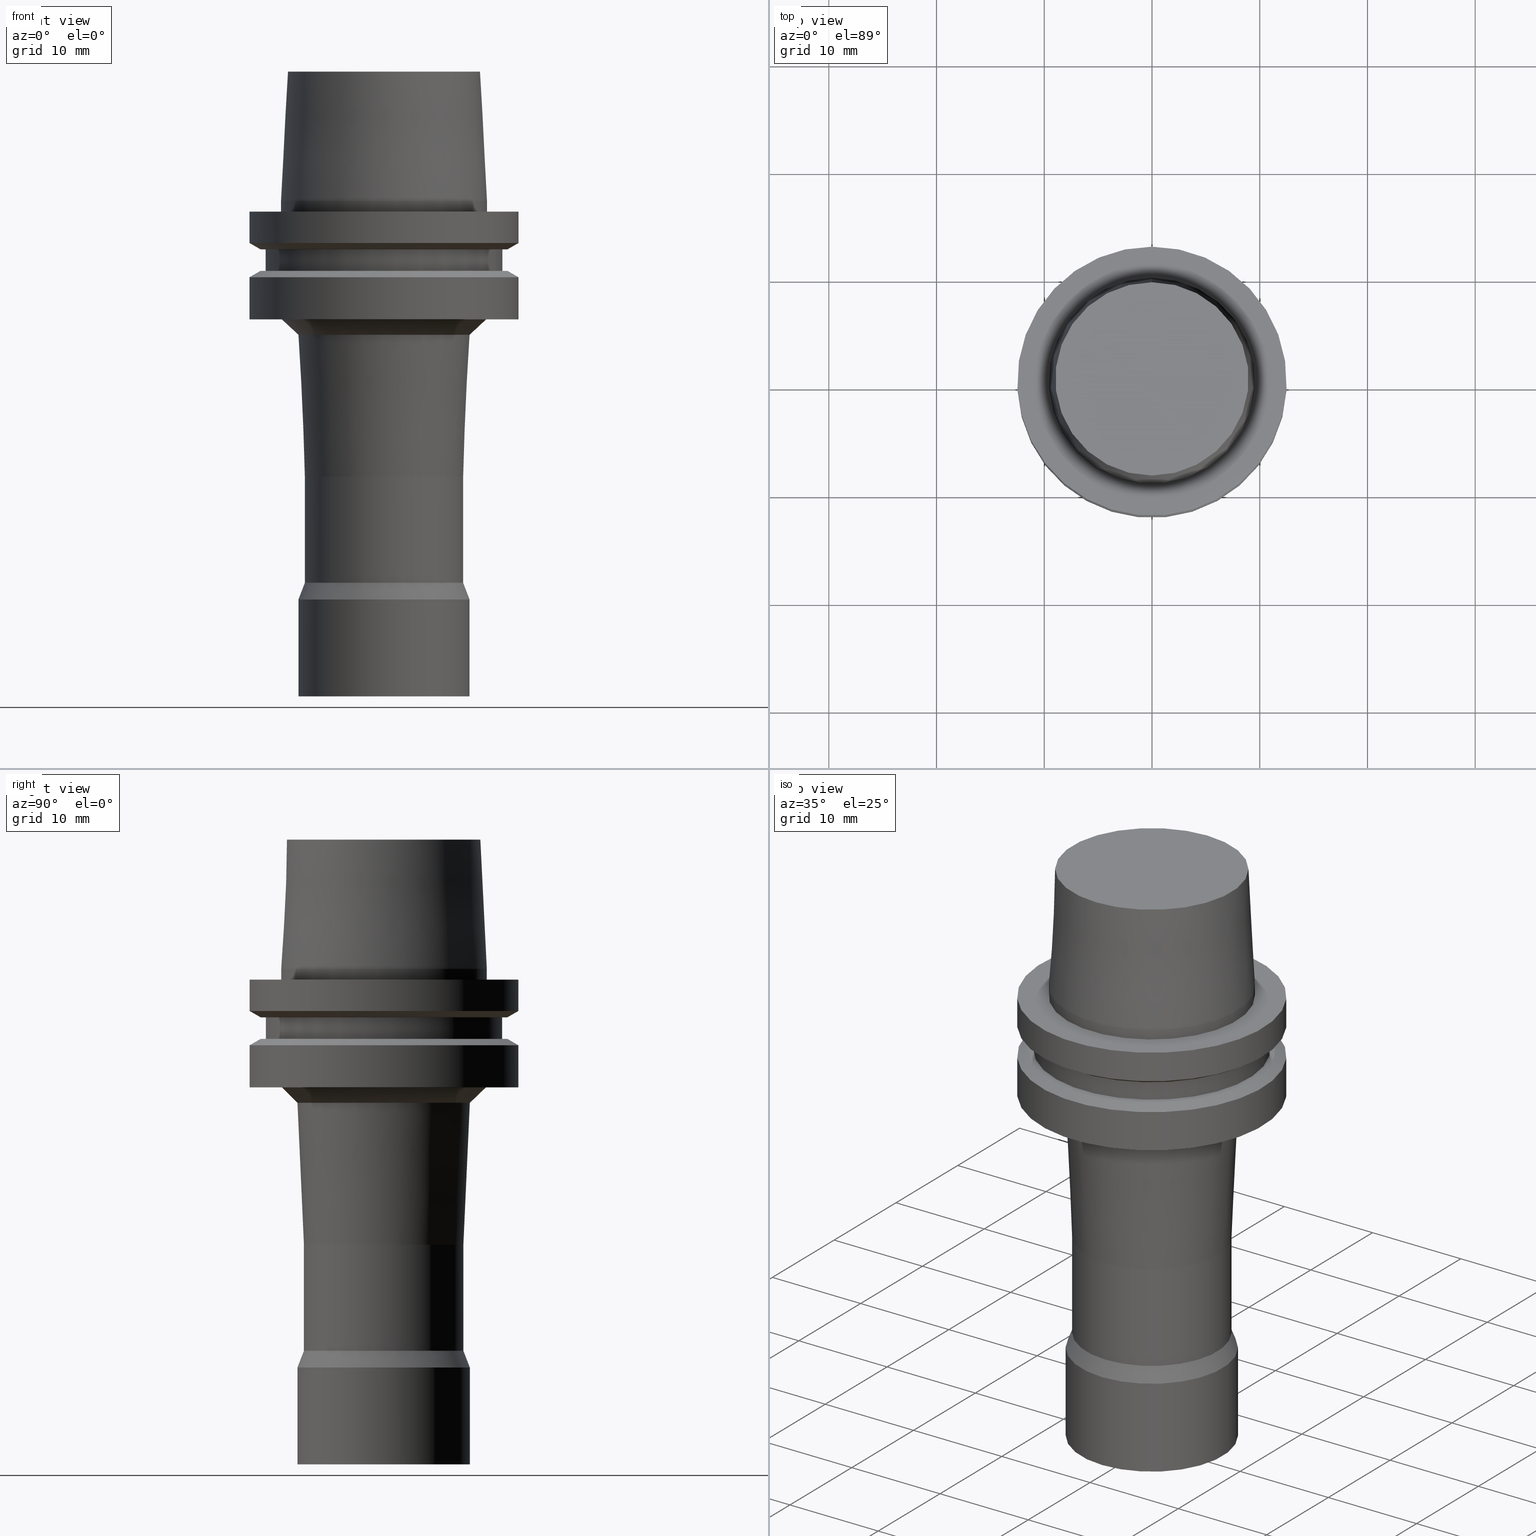
[diagram: canonical four-view strip — front | top / right | iso, engineering-drawing reading convention]
A machine part, canonical four-view strip (front | top / right | iso — engineering-drawing reading convention). The complete STEP part file that produces these views, byte-faithful:
ISO-10303-21;
HEADER;
FILE_DESCRIPTION((''),'1');
FILE_NAME('//Big_tech03/bigt/Translate/21_\X2\8F2A90ED7DDA\X0\-DXF/71_\X2\5207524A5DE55177\X0\/01_\X2\30A830F330C930DF30EB52A05DE5\X0\/01_\X2\30D530EB30AB30C330C830DF30EB\X0\ FCM/HSK/E 25/HSK-E25-FCM16092-45.stp','2012-05-30T07:07:57',(''),(''),'Spatial Interop R18','Kubotek KeyCreator V8.5.1 (14335)',' ');
FILE_SCHEMA(('CONFIG_CONTROL_DESIGN'));
ENDSEC;
DATA;
#1=DESIGN_CONTEXT('',#27,'design');
#2=APPLICATION_PROTOCOL_DEFINITION('INTERNATIONAL STANDARD','config_control_design',1994,#27);
#3=PRODUCT_CATEGORY_RELATIONSHIP('NONE','NONE',#28,#29);
#4=DATE_AND_TIME(#30,#31);
#5=DATE_TIME_ROLE('creation_date');
#6=DATE_TIME_ROLE('classification_date');
#7=PERSON_AND_ORGANIZATION_ROLE('creator');
#8=PERSON_AND_ORGANIZATION_ROLE('design_supplier');
#9=PERSON_AND_ORGANIZATION_ROLE('classification_officer');
#10=PERSON_AND_ORGANIZATION_ROLE('design_owner');
#11=APPROVAL_PERSON_ORGANIZATION(#32,#33,#34);
#12=APPROVAL_DATE_TIME(#4,#33);
#13=CC_DESIGN_APPROVAL(#33,(#35,#36,#37));
#14=CC_DESIGN_DATE_AND_TIME_ASSIGNMENT(#4,#5,(#37));
#15=CC_DESIGN_DATE_AND_TIME_ASSIGNMENT(#4,#6,(#35));
#16=CC_DESIGN_PERSON_AND_ORGANIZATION_ASSIGNMENT(#32,#10,(#38));
#17=CC_DESIGN_PERSON_AND_ORGANIZATION_ASSIGNMENT(#32,#7,(#37));
#18=CC_DESIGN_PERSON_AND_ORGANIZATION_ASSIGNMENT(#32,#7,(#36));
#19=CC_DESIGN_PERSON_AND_ORGANIZATION_ASSIGNMENT(#32,#8,(#36));
#20=CC_DESIGN_SECURITY_CLASSIFICATION(#35,(#36));
#21=CC_DESIGN_PERSON_AND_ORGANIZATION_ASSIGNMENT(#32,#9,(#35));
#22=SHAPE_DEFINITION_REPRESENTATION(#39,#40);
#23= (GEOMETRIC_REPRESENTATION_CONTEXT(3)GLOBAL_UNCERTAINTY_ASSIGNED_CONTEXT((#43))GLOBAL_UNIT_ASSIGNED_CONTEXT((#45,#46,#47))REPRESENTATION_CONTEXT('NONE','WORKSPACE'));
#27=APPLICATION_CONTEXT('CONFIGURATION CONTROLLED 3D DESIGNS OF MECHANICAL PARTS AND ASSEMBLIES');
#28=PRODUCT_CATEGORY('part','NONE');
#29=PRODUCT_RELATED_PRODUCT_CATEGORY('detail',' ',(#38));
#30=CALENDAR_DATE(2012,30,4);
#31=LOCAL_TIME(16,7,57.0,#49);
#32=PERSON_AND_ORGANIZATION(#50,#51);
#33=APPROVAL(#52,'SOLID MODEL');
#34=APPROVAL_ROLE('APPROVED');
#35=SECURITY_CLASSIFICATION('','',#53);
#36=PRODUCT_DEFINITION_FORMATION_WITH_SPECIFIED_SOURCE(' ','NONE',#38,.NOT_KNOWN.);
#37=PRODUCT_DEFINITION('NONE','NONE',#36,#1);
#38=PRODUCT('1','1','PART-1-DESC',(#54));
#39=PRODUCT_DEFINITION_SHAPE('NONE','NONE',#37);
#40=ADVANCED_BREP_SHAPE_REPRESENTATION('1',(#55,#56),#23);
#43=UNCERTAINTY_MEASURE_WITH_UNIT(LENGTH_MEASURE(1.0E-006),#45,'','');
#45= (CONVERSION_BASED_UNIT('MILLIMETRE',#59)LENGTH_UNIT()NAMED_UNIT(#62));
#46= (NAMED_UNIT(#64)PLANE_ANGLE_UNIT()SI_UNIT($,.RADIAN.));
#47= (NAMED_UNIT(#64)SOLID_ANGLE_UNIT()SI_UNIT($,.STERADIAN.));
#49=COORDINATED_UNIVERSAL_TIME_OFFSET(9,0,.AHEAD.);
#50=PERSON('','UNSPECIFIED',$,$,$,$);
#51=ORGANIZATION('UNSPECIFIED','UNSPECIFIED','UNSPECIFIED');
#52=APPROVAL_STATUS('approved');
#53=SECURITY_CLASSIFICATION_LEVEL('unclassified');
#54=MECHANICAL_CONTEXT('',#27,'mechanical');
#55=MANIFOLD_SOLID_BREP('1',#70);
#56=AXIS2_PLACEMENT_3D('',#71,#72,#73);
#59=LENGTH_MEASURE_WITH_UNIT(LENGTH_MEASURE(1.0),#74);
#62=DIMENSIONAL_EXPONENTS(1.0,0.0,0.0,0.0,0.0,0.0,0.0);
#64=DIMENSIONAL_EXPONENTS(0.0,0.0,0.0,0.0,0.0,0.0,0.0);
#70=CLOSED_SHELL('',(#75,#76,#77,#78,#79,#80,#81,#82,#83,#84,#85,#86,#87,#88,#89,#90,#91,#92));
#71=CARTESIAN_POINT('',(0.0,0.0,0.0));
#72=DIRECTION('',(0.0,0.0,1.0));
#73=DIRECTION('',(1.0,0.0,0.0));
#74= (NAMED_UNIT(#62)LENGTH_UNIT()SI_UNIT(.MILLI.,.METRE.));
#75=ADVANCED_FACE('',(#94,#95),#96,.T.);
#76=ADVANCED_FACE('',(#97,#98),#99,.T.);
#77=ADVANCED_FACE('',(#100,#101),#102,.T.);
#78=ADVANCED_FACE('',(#103,#104),#105,.T.);
#79=ADVANCED_FACE('',(#106,#107),#108,.T.);
#80=ADVANCED_FACE('',(#109,#110),#111,.T.);
#81=ADVANCED_FACE('',(#112,#113),#114,.T.);
#82=ADVANCED_FACE('',(#115,#116),#117,.T.);
#83=ADVANCED_FACE('',(#118,#119),#120,.T.);
#84=ADVANCED_FACE('',(#121,#122),#123,.T.);
#85=ADVANCED_FACE('',(#124,#125),#126,.T.);
#86=ADVANCED_FACE('',(#127,#128),#129,.T.);
#87=ADVANCED_FACE('',(#130,#131),#132,.T.);
#88=ADVANCED_FACE('',(#133,#134),#135,.T.);
#89=ADVANCED_FACE('',(#136,#137),#138,.T.);
#90=ADVANCED_FACE('',(#139),#140,.T.);
#91=ADVANCED_FACE('',(#141),#142,.T.);
#92=ADVANCED_FACE('',(#143,#144),#145,.T.);
#94=FACE_BOUND('',#146,.T.);
#95=FACE_BOUND('',#147,.T.);
#96=CYLINDRICAL_SURFACE('',#148,9.575);
#97=FACE_OUTER_BOUND('',#149,.T.);
#98=FACE_BOUND('',#150,.T.);
#99=PLANE('',#151);
#100=FACE_BOUND('',#152,.T.);
#101=FACE_BOUND('',#153,.T.);
#102=CYLINDRICAL_SURFACE('',#154,12.5);
#103=FACE_BOUND('',#155,.T.);
#104=FACE_BOUND('',#156,.T.);
#105=CONICAL_SURFACE('',#157,11.991025405,1.04719755036247);
#106=FACE_BOUND('',#158,.T.);
#107=FACE_OUTER_BOUND('',#159,.T.);
#108=PLANE('',#160);
#109=FACE_BOUND('',#161,.T.);
#110=FACE_BOUND('',#162,.T.);
#111=CYLINDRICAL_SURFACE('',#163,11.0);
#112=FACE_OUTER_BOUND('',#164,.T.);
#113=FACE_BOUND('',#165,.T.);
#114=PLANE('',#166);
#115=FACE_BOUND('',#167,.T.);
#116=FACE_BOUND('',#168,.T.);
#117=CONICAL_SURFACE('',#169,11.991025405,1.04719755036247);
#118=FACE_BOUND('',#170,.T.);
#119=FACE_BOUND('',#171,.T.);
#120=CYLINDRICAL_SURFACE('',#172,12.5);
#121=FACE_BOUND('',#173,.T.);
#122=FACE_OUTER_BOUND('',#174,.T.);
#123=PLANE('',#175);
#124=FACE_BOUND('',#176,.T.);
#125=FACE_BOUND('',#177,.T.);
#126=CONICAL_SURFACE('',#178,8.74853795516976,0.808146448152672);
#127=FACE_BOUND('',#179,.T.);
#128=FACE_BOUND('',#180,.T.);
#129=CONICAL_SURFACE('',#181,7.69965702516976,0.0454965695104514);
#130=FACE_BOUND('',#182,.T.);
#131=FACE_BOUND('',#183,.T.);
#132=CYLINDRICAL_SURFACE('',#184,7.4);
#133=FACE_BOUND('',#185,.T.);
#134=FACE_BOUND('',#186,.T.);
#135=CONICAL_SURFACE('',#187,7.7,0.369443265532845);
#136=FACE_BOUND('',#188,.T.);
#137=FACE_BOUND('',#189,.T.);
#138=CYLINDRICAL_SURFACE('',#190,8.0);
#139=FACE_OUTER_BOUND('',#191,.T.);
#140=PLANE('',#192);
#141=FACE_OUTER_BOUND('',#193,.T.);
#142=PLANE('',#194);
#143=FACE_BOUND('',#195,.T.);
#144=FACE_BOUND('',#196,.T.);
#145=CONICAL_SURFACE('',#197,9.275,0.0499583957219411);
#146=EDGE_LOOP('',(#198));
#147=EDGE_LOOP('',(#199));
#148=AXIS2_PLACEMENT_3D('',#200,#201,#202);
#149=EDGE_LOOP('',(#203));
#150=EDGE_LOOP('',(#204));
#151=AXIS2_PLACEMENT_3D('',#205,#206,#207);
#152=EDGE_LOOP('',(#208));
#153=EDGE_LOOP('',(#209));
#154=AXIS2_PLACEMENT_3D('',#210,#211,#212);
#155=EDGE_LOOP('',(#213));
#156=EDGE_LOOP('',(#214));
#157=AXIS2_PLACEMENT_3D('',#215,#216,#217);
#158=EDGE_LOOP('',(#218));
#159=EDGE_LOOP('',(#219));
#160=AXIS2_PLACEMENT_3D('',#220,#221,#222);
#161=EDGE_LOOP('',(#223));
#162=EDGE_LOOP('',(#224));
#163=AXIS2_PLACEMENT_3D('',#225,#226,#227);
#164=EDGE_LOOP('',(#228));
#165=EDGE_LOOP('',(#229));
#166=AXIS2_PLACEMENT_3D('',#230,#231,#232);
#167=EDGE_LOOP('',(#233));
#168=EDGE_LOOP('',(#234));
#169=AXIS2_PLACEMENT_3D('',#235,#236,#237);
#170=EDGE_LOOP('',(#238));
#171=EDGE_LOOP('',(#239));
#172=AXIS2_PLACEMENT_3D('',#240,#241,#242);
#173=EDGE_LOOP('',(#243));
#174=EDGE_LOOP('',(#244));
#175=AXIS2_PLACEMENT_3D('',#245,#246,#247);
#176=EDGE_LOOP('',(#248));
#177=EDGE_LOOP('',(#249));
#178=AXIS2_PLACEMENT_3D('',#250,#251,#252);
#179=EDGE_LOOP('',(#253));
#180=EDGE_LOOP('',(#254));
#181=AXIS2_PLACEMENT_3D('',#255,#256,#257);
#182=EDGE_LOOP('',(#258));
#183=EDGE_LOOP('',(#259));
#184=AXIS2_PLACEMENT_3D('',#260,#261,#262);
#185=EDGE_LOOP('',(#263));
#186=EDGE_LOOP('',(#264));
#187=AXIS2_PLACEMENT_3D('',#265,#266,#267);
#188=EDGE_LOOP('',(#268));
#189=EDGE_LOOP('',(#269));
#190=AXIS2_PLACEMENT_3D('',#270,#271,#272);
#191=EDGE_LOOP('',(#273));
#192=AXIS2_PLACEMENT_3D('',#274,#275,#276);
#193=EDGE_LOOP('',(#277));
#194=AXIS2_PLACEMENT_3D('',#278,#279,#280);
#195=EDGE_LOOP('',(#281));
#196=EDGE_LOOP('',(#282));
#197=AXIS2_PLACEMENT_3D('',#283,#284,#285);
#198=ORIENTED_EDGE('',*,*,#286,.F.);
#199=ORIENTED_EDGE('',*,*,#287,.T.);
#200=CARTESIAN_POINT('',(-3.06161699786838E-017,-6.12323399573676E-017,0.5));
#201=DIRECTION('',(-6.12323399573677E-017,-1.22464679914735E-016,1.0));
#202=DIRECTION('',(-1.23259516440783E-032,1.0,1.22464679914735E-016));
#203=ORIENTED_EDGE('',*,*,#288,.F.);
#204=ORIENTED_EDGE('',*,*,#286,.T.);
#205=CARTESIAN_POINT('',(-1.36047691271514E-031,11.0375,1.35170390455889E-015));
#206=DIRECTION('',(-6.12323399573677E-017,-1.22464679914735E-016,1.0));
#207=DIRECTION('',(1.23259516440783E-032,-1.0,-1.22464679914735E-016));
#208=ORIENTED_EDGE('',*,*,#289,.F.);
#209=ORIENTED_EDGE('',*,*,#288,.T.);
#210=CARTESIAN_POINT('',(8.91630664708304E-017,1.78326132941661E-016,-1.45614338));
#211=DIRECTION('',(-6.12323399573677E-017,-1.22464679914735E-016,1.0));
#212=DIRECTION('',(-1.23259516440783E-032,1.0,1.22464679914735E-016));
#213=ORIENTED_EDGE('',*,*,#290,.F.);
#214=ORIENTED_EDGE('',*,*,#289,.T.);
#215=CARTESIAN_POINT('',(1.96319661396224E-016,3.92639322792447E-016,-3.20614338));
#216=DIRECTION('',(-6.12323399573677E-017,-1.22464679914735E-016,1.0));
#217=DIRECTION('',(-1.23259516440783E-032,1.0,1.22464679914735E-016));
#218=ORIENTED_EDGE('',*,*,#291,.F.);
#219=ORIENTED_EDGE('',*,*,#290,.T.);
#220=CARTESIAN_POINT('',(2.14313189850787E-016,11.241025405,-3.5));
#221=DIRECTION('',(6.12323399573677E-017,1.22464679914735E-016,-1.0));
#222=DIRECTION('',(-1.23259516440783E-032,1.0,1.22464679914735E-016));
#223=ORIENTED_EDGE('',*,*,#292,.F.);
#224=ORIENTED_EDGE('',*,*,#291,.T.);
#225=CARTESIAN_POINT('',(2.75545529808154E-016,5.51091059616309E-016,-4.5));
#226=DIRECTION('',(-6.12323399573677E-017,-1.22464679914735E-016,1.0));
#227=DIRECTION('',(-1.23259516440783E-032,1.0,1.22464679914735E-016));
#228=ORIENTED_EDGE('',*,*,#293,.F.);
#229=ORIENTED_EDGE('',*,*,#292,.T.);
#230=CARTESIAN_POINT('',(3.36777869765522E-016,11.241025405,-5.5));
#231=DIRECTION('',(-6.12323399573677E-017,-1.22464679914735E-016,1.0));
#232=DIRECTION('',(1.23259516440783E-032,-1.0,-1.22464679914735E-016));
#233=ORIENTED_EDGE('',*,*,#294,.F.);
#234=ORIENTED_EDGE('',*,*,#293,.T.);
#235=CARTESIAN_POINT('',(3.54771398220085E-016,7.0954279644017E-016,-5.79385662));
#236=DIRECTION('',(6.12323399573677E-017,1.22464679914735E-016,-1.0));
#237=DIRECTION('',(-1.23259516440783E-032,1.0,1.22464679914735E-016));
#238=ORIENTED_EDGE('',*,*,#295,.F.);
#239=ORIENTED_EDGE('',*,*,#294,.T.);
#240=CARTESIAN_POINT('',(4.92544163124162E-016,9.85088326248324E-016,-8.04385662));
#241=DIRECTION('',(-6.12323399573677E-017,-1.22464679914735E-016,1.0));
#242=DIRECTION('',(-1.23259516440783E-032,1.0,1.22464679914735E-016));
#243=ORIENTED_EDGE('',*,*,#296,.F.);
#244=ORIENTED_EDGE('',*,*,#295,.T.);
#245=CARTESIAN_POINT('',(6.12323399573677E-016,10.99888093,-10.0));
#246=DIRECTION('',(6.12323399573677E-017,1.22464679914735E-016,-1.0));
#247=DIRECTION('',(-1.23259516440783E-032,1.0,1.22464679914735E-016));
#248=ORIENTED_EDGE('',*,*,#297,.F.);
#249=ORIENTED_EDGE('',*,*,#296,.T.);
#250=CARTESIAN_POINT('',(6.5615897909026E-016,1.31231795818052E-015,-10.7158893412714));
#251=DIRECTION('',(-6.12323399573676E-017,-1.22464679914735E-016,1.0));
#252=DIRECTION('',(-1.23259516440783E-032,1.0,1.22464679914735E-016));
#253=ORIENTED_EDGE('',*,*,#298,.F.);
#254=ORIENTED_EDGE('',*,*,#297,.T.);
#255=CARTESIAN_POINT('',(1.10301480963518E-015,2.20602961927036E-015,-18.0135988662714));
#256=DIRECTION('',(-6.12323399573677E-017,-1.22464679914735E-016,1.0));
#257=DIRECTION('',(-1.23259516440783E-032,1.0,1.22464679914735E-016));
#258=ORIENTED_EDGE('',*,*,#299,.F.);
#259=ORIENTED_EDGE('',*,*,#298,.T.);
#260=CARTESIAN_POINT('',(1.80776003226133E-015,3.61552006452266E-015,-29.52296178));
#261=DIRECTION('',(-6.12323399573677E-017,-1.22464679914735E-016,1.0));
#262=DIRECTION('',(-1.23259516440783E-032,1.0,1.22464679914735E-016));
#263=ORIENTED_EDGE('',*,*,#300,.F.);
#264=ORIENTED_EDGE('',*,*,#299,.T.);
#265=CARTESIAN_POINT('',(2.15692462116219E-015,4.31384924232438E-015,-35.225252255));
#266=DIRECTION('',(6.12323399573677E-017,1.22464679914735E-016,-1.0));
#267=DIRECTION('',(-1.23259516440783E-032,1.0,1.22464679914735E-016));
#268=ORIENTED_EDGE('',*,*,#301,.F.);
#269=ORIENTED_EDGE('',*,*,#300,.T.);
#270=CARTESIAN_POINT('',(2.47990976827339E-015,4.95981953654678E-015,-40.5));
#271=DIRECTION('',(-6.12323399573677E-017,-1.22464679914735E-016,1.0));
#272=DIRECTION('',(-1.23259516440783E-032,1.0,1.22464679914735E-016));
#273=ORIENTED_EDGE('',*,*,#301,.T.);
#274=CARTESIAN_POINT('',(2.75545529808154E-015,4.00000000000001,-45.0));
#275=DIRECTION('',(6.12323399573677E-017,1.22464679914735E-016,-1.0));
#276=DIRECTION('',(-1.23259516440783E-032,1.0,1.22464679914735E-016));
#277=ORIENTED_EDGE('',*,*,#302,.F.);
#278=CARTESIAN_POINT('',(-7.9602041944578E-016,4.4875,13.0));
#279=DIRECTION('',(-6.12323399573677E-017,-1.22464679914735E-016,1.0));
#280=DIRECTION('',(1.23259516440783E-032,-1.0,-1.22464679914735E-016));
#281=ORIENTED_EDGE('',*,*,#287,.F.);
#282=ORIENTED_EDGE('',*,*,#302,.T.);
#283=CARTESIAN_POINT('',(-4.28626379701574E-016,-8.57252759403147E-016,7.0));
#284=DIRECTION('',(6.12323399573676E-017,1.22464679914735E-016,-1.0));
#285=DIRECTION('',(-1.23259516440783E-032,1.0,1.22464679914735E-016));
#286=EDGE_CURVE('',#303,#303,#304,.T.);
#287=EDGE_CURVE('',#305,#305,#306,.T.);
#288=EDGE_CURVE('',#307,#307,#308,.T.);
#289=EDGE_CURVE('',#309,#309,#310,.T.);
#290=EDGE_CURVE('',#311,#311,#312,.T.);
#291=EDGE_CURVE('',#313,#313,#314,.T.);
#292=EDGE_CURVE('',#315,#315,#316,.T.);
#293=EDGE_CURVE('',#317,#317,#318,.T.);
#294=EDGE_CURVE('',#319,#319,#320,.T.);
#295=EDGE_CURVE('',#321,#321,#322,.T.);
#296=EDGE_CURVE('',#323,#323,#324,.T.);
#297=EDGE_CURVE('',#325,#325,#326,.T.);
#298=EDGE_CURVE('',#327,#327,#328,.T.);
#299=EDGE_CURVE('',#329,#329,#330,.T.);
#300=EDGE_CURVE('',#331,#331,#332,.T.);
#301=EDGE_CURVE('',#333,#333,#334,.T.);
#302=EDGE_CURVE('',#335,#335,#336,.T.);
#303=VERTEX_POINT('',#337);
#304=CIRCLE('',#338,9.575);
#305=VERTEX_POINT('',#339);
#306=CIRCLE('',#340,9.575);
#307=VERTEX_POINT('',#341);
#308=CIRCLE('',#342,12.5);
#309=VERTEX_POINT('',#343);
#310=CIRCLE('',#344,12.5);
#311=VERTEX_POINT('',#345);
#312=CIRCLE('',#346,11.48205081);
#313=VERTEX_POINT('',#347);
#314=CIRCLE('',#348,11.0);
#315=VERTEX_POINT('',#349);
#316=CIRCLE('',#350,11.0);
#317=VERTEX_POINT('',#351);
#318=CIRCLE('',#352,11.48205081);
#319=VERTEX_POINT('',#353);
#320=CIRCLE('',#354,12.5);
#321=VERTEX_POINT('',#355);
#322=CIRCLE('',#356,12.5);
#323=VERTEX_POINT('',#357);
#324=CIRCLE('',#358,9.49776186);
#325=VERTEX_POINT('',#359);
#326=CIRCLE('',#360,7.99931405033951);
#327=VERTEX_POINT('',#361);
#328=CIRCLE('',#362,7.4);
#329=VERTEX_POINT('',#363);
#330=CIRCLE('',#364,7.4);
#331=VERTEX_POINT('',#365);
#332=CIRCLE('',#366,8.0);
#333=VERTEX_POINT('',#367);
#334=CIRCLE('',#368,8.0);
#335=VERTEX_POINT('',#369);
#336=CIRCLE('',#370,8.975);
#337=CARTESIAN_POINT('',(-1.1802098699205E-031,9.575,1.17259931018359E-015));
#338=AXIS2_PLACEMENT_3D('',#371,#372,#373);
#339=CARTESIAN_POINT('',(-6.12323399573678E-017,9.575,1.0));
#340=AXIS2_PLACEMENT_3D('',#374,#375,#376);
#341=CARTESIAN_POINT('',(-1.54074395550979E-031,12.5,1.53080849893419E-015));
#342=AXIS2_PLACEMENT_3D('',#377,#378,#379);
#343=CARTESIAN_POINT('',(1.78326132941661E-016,12.5,-2.91228676));
#344=AXIS2_PLACEMENT_3D('',#380,#381,#382);
#345=CARTESIAN_POINT('',(2.14313189850787E-016,11.48205081,-3.5));
#346=AXIS2_PLACEMENT_3D('',#383,#384,#385);
#347=CARTESIAN_POINT('',(2.14313189850787E-016,11.0,-3.5));
#348=AXIS2_PLACEMENT_3D('',#386,#387,#388);
#349=CARTESIAN_POINT('',(3.36777869765522E-016,11.0,-5.5));
#350=AXIS2_PLACEMENT_3D('',#389,#390,#391);
#351=CARTESIAN_POINT('',(3.36777869765522E-016,11.48205081,-5.5));
#352=AXIS2_PLACEMENT_3D('',#392,#393,#394);
#353=CARTESIAN_POINT('',(3.72764926674648E-016,12.5,-6.08771324));
#354=AXIS2_PLACEMENT_3D('',#395,#396,#397);
#355=CARTESIAN_POINT('',(6.12323399573676E-016,12.5,-10.0));
#356=AXIS2_PLACEMENT_3D('',#398,#399,#400);
#357=CARTESIAN_POINT('',(6.12323399573677E-016,9.49776186,-10.0));
#358=AXIS2_PLACEMENT_3D('',#401,#402,#403);
#359=CARTESIAN_POINT('',(6.99994558606844E-016,7.99931405033952,-11.4317786825427));
#360=AXIS2_PLACEMENT_3D('',#404,#405,#406);
#361=CARTESIAN_POINT('',(1.50603506066352E-015,7.4,-24.59541905));
#362=AXIS2_PLACEMENT_3D('',#407,#408,#409);
#363=CARTESIAN_POINT('',(2.10948500385915E-015,7.4,-34.45050451));
#364=AXIS2_PLACEMENT_3D('',#410,#411,#412);
#365=CARTESIAN_POINT('',(2.20436423846524E-015,8.0,-36.0));
#366=AXIS2_PLACEMENT_3D('',#413,#414,#415);
#367=CARTESIAN_POINT('',(2.75545529808154E-015,8.00000000000001,-45.0));
#368=AXIS2_PLACEMENT_3D('',#416,#417,#418);
#369=CARTESIAN_POINT('',(-7.9602041944578E-016,8.975,13.0));
#370=AXIS2_PLACEMENT_3D('',#419,#420,#421);
#371=CARTESIAN_POINT('',(0.0,0.0,0.0));
#372=DIRECTION('',(6.12323399573677E-017,1.22464679914735E-016,-1.0));
#373=DIRECTION('',(-1.23259516440783E-032,1.0,1.22464679914735E-016));
#374=CARTESIAN_POINT('',(-6.12323399573677E-017,-1.22464679914735E-016,1.0));
#375=DIRECTION('',(6.12323399573677E-017,1.22464679914735E-016,-1.0));
#376=DIRECTION('',(-1.23259516440783E-032,1.0,1.22464679914735E-016));
#377=CARTESIAN_POINT('',(0.0,0.0,0.0));
#378=DIRECTION('',(6.12323399573677E-017,1.22464679914735E-016,-1.0));
#379=DIRECTION('',(-1.23259516440783E-032,1.0,1.22464679914735E-016));
#380=CARTESIAN_POINT('',(1.78326132941661E-016,3.56652265883322E-016,-2.91228676));
#381=DIRECTION('',(6.12323399573677E-017,1.22464679914735E-016,-1.0));
#382=DIRECTION('',(-1.23259516440783E-032,1.0,1.22464679914735E-016));
#383=CARTESIAN_POINT('',(2.14313189850787E-016,4.28626379701573E-016,-3.5));
#384=DIRECTION('',(6.12323399573676E-017,1.22464679914735E-016,-1.0));
#385=DIRECTION('',(-1.23259516440783E-032,1.0,1.22464679914735E-016));
#386=CARTESIAN_POINT('',(2.14313189850787E-016,4.28626379701573E-016,-3.5));
#387=DIRECTION('',(6.12323399573677E-017,1.22464679914735E-016,-1.0));
#388=DIRECTION('',(-1.23259516440783E-032,1.0,1.22464679914735E-016));
#389=CARTESIAN_POINT('',(3.36777869765522E-016,6.73555739531044E-016,-5.5));
#390=DIRECTION('',(6.12323399573677E-017,1.22464679914735E-016,-1.0));
#391=DIRECTION('',(-1.23259516440783E-032,1.0,1.22464679914735E-016));
#392=CARTESIAN_POINT('',(3.36777869765522E-016,6.73555739531044E-016,-5.5));
#393=DIRECTION('',(6.12323399573676E-017,1.22464679914735E-016,-1.0));
#394=DIRECTION('',(-1.23259516440783E-032,1.0,1.22464679914735E-016));
#395=CARTESIAN_POINT('',(3.72764926674648E-016,7.45529853349296E-016,-6.08771324));
#396=DIRECTION('',(6.12323399573677E-017,1.22464679914735E-016,-1.0));
#397=DIRECTION('',(-1.23259516440783E-032,1.0,1.22464679914735E-016));
#398=CARTESIAN_POINT('',(6.12323399573677E-016,1.22464679914735E-015,-10.0));
#399=DIRECTION('',(6.12323399573677E-017,1.22464679914735E-016,-1.0));
#400=DIRECTION('',(-1.23259516440783E-032,1.0,1.22464679914735E-016));
#401=CARTESIAN_POINT('',(6.12323399573677E-016,1.22464679914735E-015,-10.0));
#402=DIRECTION('',(6.12323399573677E-017,1.22464679914735E-016,-1.0));
#403=DIRECTION('',(-1.23259516440783E-032,1.0,1.22464679914735E-016));
#404=CARTESIAN_POINT('',(6.99994558606844E-016,1.39998911721369E-015,-11.4317786825427));
#405=DIRECTION('',(6.12323399573677E-017,1.22464679914735E-016,-1.0));
#406=DIRECTION('',(-1.23259516440783E-032,1.0,1.22464679914735E-016));
#407=CARTESIAN_POINT('',(1.50603506066352E-015,3.01207012132703E-015,-24.59541905));
#408=DIRECTION('',(6.12323399573677E-017,1.22464679914735E-016,-1.0));
#409=DIRECTION('',(-1.23259516440783E-032,1.0,1.22464679914735E-016));
#410=CARTESIAN_POINT('',(2.10948500385915E-015,4.21897000771829E-015,-34.45050451));
#411=DIRECTION('',(6.12323399573677E-017,1.22464679914735E-016,-1.0));
#412=DIRECTION('',(-1.23259516440783E-032,1.0,1.22464679914735E-016));
#413=CARTESIAN_POINT('',(2.20436423846524E-015,4.40872847693047E-015,-36.0));
#414=DIRECTION('',(6.12323399573677E-017,1.22464679914735E-016,-1.0));
#415=DIRECTION('',(-1.23259516440783E-032,1.0,1.22464679914735E-016));
#416=CARTESIAN_POINT('',(2.75545529808154E-015,5.51091059616309E-015,-45.0));
#417=DIRECTION('',(6.12323399573677E-017,1.22464679914735E-016,-1.0));
#418=DIRECTION('',(-1.23259516440783E-032,1.0,1.22464679914735E-016));
#419=CARTESIAN_POINT('',(-7.9602041944578E-016,-1.59204083889156E-015,13.0));
#420=DIRECTION('',(6.12323399573676E-017,1.22464679914735E-016,-1.0));
#421=DIRECTION('',(-1.23259516440783E-032,1.0,1.22464679914735E-016));
ENDSEC;
END-ISO-10303-21;
